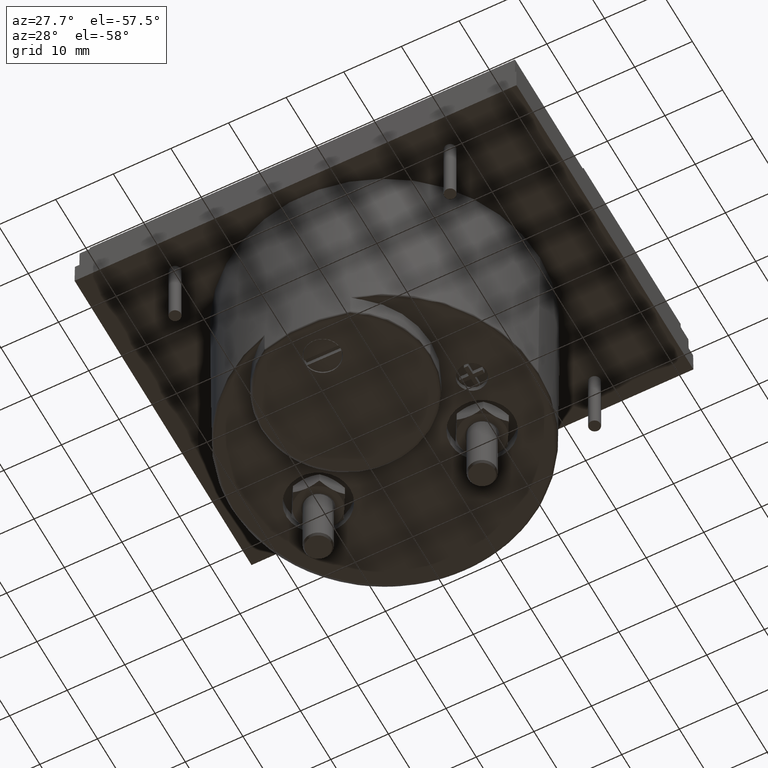
[diagram: clean part render]
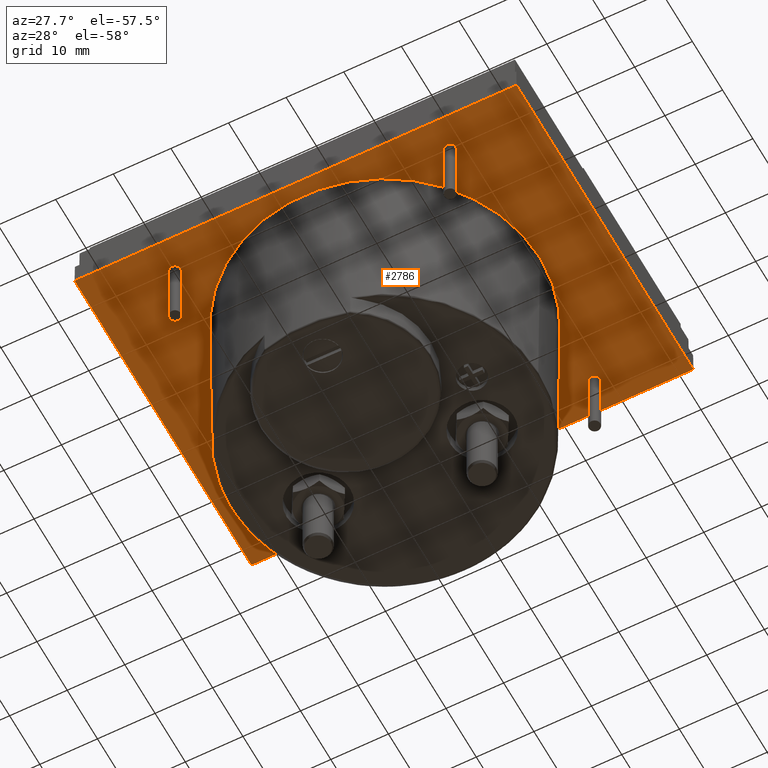
[diagram: same view with one face highlighted and labeled with its STEP entity id]
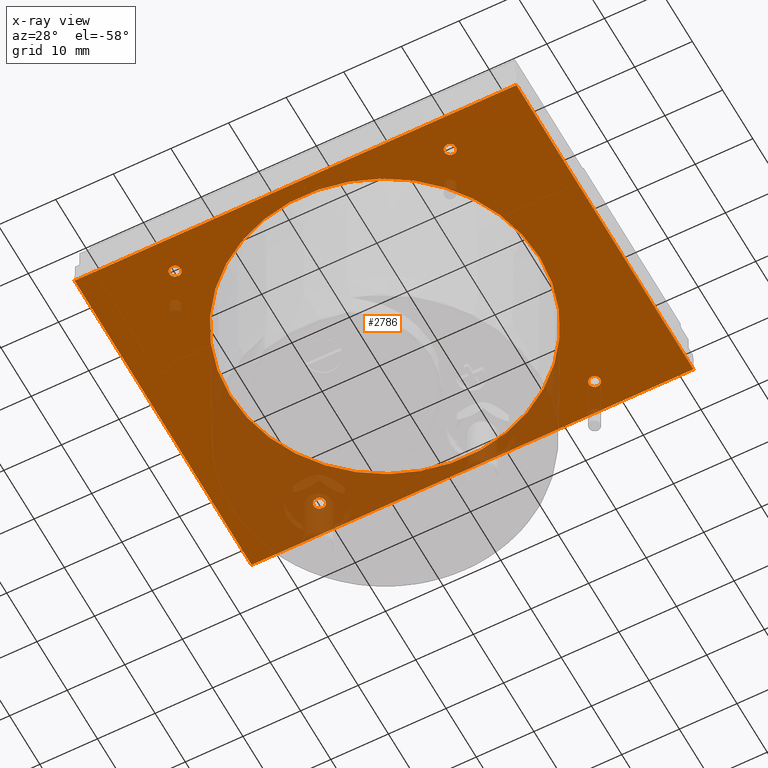
[diagram: x-ray of the same camera — body ghosted, the highlighted face saturated]
A machine part, auxiliary view. The second image highlights one B-rep face of the part: STEP entity #2786.
The next image is the same camera in x-ray: the body ghosted, the highlighted face saturated — about 24% of this face is hidden behind the body in this view.
In plain terms, the highlighted planar face has unit normal (0, 0, -1).
Its self-contained STEP definition (entity closure, byte-faithful):
#53 = AXIS2_PLACEMENT_3D ( 'NONE', #5462, #4563, #1286 ) ;
#57 = EDGE_CURVE ( 'NONE', #2270, #3653, #536, .T. ) ;
#108 = CARTESIAN_POINT ( 'NONE',  ( 1.456692913385826849, 1.956692913385826849, -0.2732283464566925280 ) ) ;
#130 = CARTESIAN_POINT ( 'NONE',  ( -0.9400000000000000577, 1.755905511811027830, -0.2732283464566929720 ) ) ;
#156 = CIRCLE ( 'NONE', #5082, 1.059999999999999831 ) ;
#235 = CARTESIAN_POINT ( 'NONE',  ( 1.060000000000000719, 0.8159055118110236648, -0.2732283464567021314 ) ) ;
#397 = DIRECTION ( 'NONE',  ( -1.000000000000000000, 0.000000000000000000, 0.000000000000000000 ) ) ;
#420 = LINE ( 'NONE', #1813, #1433 ) ;
#481 = CIRCLE ( 'NONE', #5802, 0.03937007874015751446 ) ;
#536 = CIRCLE ( 'NONE', #4500, 0.03937007874015751446 ) ;
#615 = CARTESIAN_POINT ( 'NONE',  ( -0.9793700787401575791, 1.755905511811027830, -0.2732283464566929720 ) ) ;
#646 = DIRECTION ( 'NONE',  ( -0.000000000000000000, -0.000000000000000000, 1.000000000000000000 ) ) ;
#679 = ORIENTED_EDGE ( 'NONE', *, *, #2956, .T. ) ;
#703 = DIRECTION ( 'NONE',  ( 1.000000000000000000, 0.000000000000000000, 0.000000000000000000 ) ) ;
#756 = ORIENTED_EDGE ( 'NONE', *, *, #5242, .T. ) ;
#760 = VECTOR ( 'NONE', #3717, 39.37007874015748143 ) ;
#786 = ORIENTED_EDGE ( 'NONE', *, *, #2750, .T. ) ;
#804 = FACE_OUTER_BOUND ( 'NONE', #3596, .T. ) ;
#810 = CARTESIAN_POINT ( 'NONE',  ( 0.9006299212598425363, 1.755905511811027830, -0.2732283464566929720 ) ) ;
#829 = ORIENTED_EDGE ( 'NONE', *, *, #3548, .T. ) ;
#854 = CIRCLE ( 'NONE', #1044, 0.03937007874015751446 ) ;
#894 = CARTESIAN_POINT ( 'NONE',  ( 1.456692913385826849, -0.2440944881889744178, -0.2732283464566925280 ) ) ;
#938 = VECTOR ( 'NONE', #1303, 39.37007874015748143 ) ;
#958 = DIRECTION ( 'NONE',  ( -1.000000000000000000, 0.000000000000000000, 0.000000000000000000 ) ) ;
#1008 = VERTEX_POINT ( 'NONE', #4465 ) ;
#1044 = AXIS2_PLACEMENT_3D ( 'NONE', #2370, #2435, #2831 ) ;
#1161 = CIRCLE ( 'NONE', #4545, 0.03937007874015751446 ) ;
#1223 = ORIENTED_EDGE ( 'NONE', *, *, #5530, .T. ) ;
#1229 = VERTEX_POINT ( 'NONE', #615 ) ;
#1242 = DIRECTION ( 'NONE',  ( -0.000000000000000000, -0.000000000000000000, 1.000000000000000000 ) ) ;
#1278 = CARTESIAN_POINT ( 'NONE',  ( -1.509842519685039575, -0.2440944881889744178, -0.2732283464566925280 ) ) ;
#1286 = DIRECTION ( 'NONE',  ( -1.000000000000000000, 0.000000000000000000, 0.000000000000000000 ) ) ;
#1301 = DIRECTION ( 'NONE',  ( -1.000000000000000000, 0.000000000000000000, 0.000000000000000000 ) ) ;
#1303 = DIRECTION ( 'NONE',  ( 0.000000000000000000, 1.000000000000000000, 0.000000000000000000 ) ) ;
#1338 = PLANE ( 'NONE',  #1802 ) ;
#1408 = CIRCLE ( 'NONE', #53, 0.03937007874015751446 ) ;
#1433 = VECTOR ( 'NONE', #5959, 39.37007874015748143 ) ;
#1546 = CARTESIAN_POINT ( 'NONE',  ( -0.9400000000000000577, -0.1240944881889748247, -0.2732283464566929720 ) ) ;
#1584 = EDGE_CURVE ( 'NONE', #5752, #1864, #2959, .T. ) ;
#1641 = EDGE_LOOP ( 'NONE', ( #756, #4959 ) ) ;
#1743 = CARTESIAN_POINT ( 'NONE',  ( 0.9793700787401575791, 1.755905511811027830, -0.2732283464566929720 ) ) ;
#1762 = DIRECTION ( 'NONE',  ( 0.000000000000000000, 0.000000000000000000, -1.000000000000000000 ) ) ;
#1775 = DIRECTION ( 'NONE',  ( 0.000000000000000000, -0.000000000000000000, -1.000000000000000000 ) ) ;
#1787 = VERTEX_POINT ( 'NONE', #5195 ) ;
#1788 = FACE_BOUND ( 'NONE', #5803, .T. ) ;
#1802 = AXIS2_PLACEMENT_3D ( 'NONE', #894, #1762, #3623 ) ;
#1813 = CARTESIAN_POINT ( 'NONE',  ( 1.456692913385826849, -0.3464566929133838791, -0.2732283464566925280 ) ) ;
#1854 = DIRECTION ( 'NONE',  ( -0.000000000000000000, -0.000000000000000000, 1.000000000000000000 ) ) ;
#1857 = VERTEX_POINT ( 'NONE', #1743 ) ;
#1859 = LINE ( 'NONE', #108, #760 ) ;
#1864 = VERTEX_POINT ( 'NONE', #235 ) ;
#2004 = CARTESIAN_POINT ( 'NONE',  ( 0.9400000000000000577, 1.755905511811027830, -0.2732283464566929720 ) ) ;
#2014 = EDGE_CURVE ( 'NONE', #5827, #1008, #1408, .T. ) ;
#2089 = ORIENTED_EDGE ( 'NONE', *, *, #4495, .T. ) ;
#2217 = FACE_BOUND ( 'NONE', #1641, .T. ) ;
#2257 = DIRECTION ( 'NONE',  ( 1.000000000000000000, 0.000000000000000000, 0.000000000000000000 ) ) ;
#2270 = VERTEX_POINT ( 'NONE', #2511 ) ;
#2309 = EDGE_CURVE ( 'NONE', #1864, #5752, #156, .T. ) ;
#2370 = CARTESIAN_POINT ( 'NONE',  ( -0.9400000000000000577, -0.1240944881889748247, -0.2732283464566929720 ) ) ;
#2401 = DIRECTION ( 'NONE',  ( -0.000000000000000000, -0.000000000000000000, 1.000000000000000000 ) ) ;
#2407 = CIRCLE ( 'NONE', #3003, 0.03937007874015751446 ) ;
#2435 = DIRECTION ( 'NONE',  ( -0.000000000000000000, -0.000000000000000000, 1.000000000000000000 ) ) ;
#2511 = CARTESIAN_POINT ( 'NONE',  ( -0.9006299212598425363, -0.1240944881889748247, -0.2732283464566929720 ) ) ;
#2613 = AXIS2_PLACEMENT_3D ( 'NONE', #130, #1854, #3258 ) ;
#2750 = EDGE_CURVE ( 'NONE', #4220, #3808, #3597, .T. ) ;
#2754 = CARTESIAN_POINT ( 'NONE',  ( -1.509842519685039575, -0.3464566929133838791, -0.2732283464566924169 ) ) ;
#2786 = ADVANCED_FACE ( 'NONE', ( #804, #4520, #2217, #4069, #1788, #5915 ), #1338, .T. ) ;
#2793 = CIRCLE ( 'NONE', #4343, 0.03937007874015751446 ) ;
#2831 = DIRECTION ( 'NONE',  ( -1.000000000000000000, 0.000000000000000000, 0.000000000000000000 ) ) ;
#2854 = CARTESIAN_POINT ( 'NONE',  ( 0.9793700787401575791, -0.1240944881889740337, -0.2732283464566929720 ) ) ;
#2956 = EDGE_CURVE ( 'NONE', #1787, #3833, #3611, .T. ) ;
#2959 = CIRCLE ( 'NONE', #4308, 1.059999999999999831 ) ;
#3003 = AXIS2_PLACEMENT_3D ( 'NONE', #3560, #1242, #397 ) ;
#3231 = EDGE_LOOP ( 'NONE', ( #4269, #3872 ) ) ;
#3258 = DIRECTION ( 'NONE',  ( -1.000000000000000000, 0.000000000000000000, 0.000000000000000000 ) ) ;
#3466 = VERTEX_POINT ( 'NONE', #3780 ) ;
#3548 = EDGE_CURVE ( 'NONE', #3653, #2270, #854, .T. ) ;
#3560 = CARTESIAN_POINT ( 'NONE',  ( 0.9400000000000000577, 1.755905511811027830, -0.2732283464566929720 ) ) ;
#3589 = EDGE_CURVE ( 'NONE', #3808, #1787, #1859, .T. ) ;
#3596 = EDGE_LOOP ( 'NONE', ( #5388, #679, #2089, #786 ) ) ;
#3597 = LINE ( 'NONE', #1278, #938 ) ;
#3611 = LINE ( 'NONE', #5440, #4219 ) ;
#3623 = DIRECTION ( 'NONE',  ( -1.000000000000000000, 0.000000000000000000, -0.000000000000000000 ) ) ;
#3649 = ORIENTED_EDGE ( 'NONE', *, *, #57, .T. ) ;
#3653 = VERTEX_POINT ( 'NONE', #4831 ) ;
#3711 = CARTESIAN_POINT ( 'NONE',  ( 1.509842519685039575, -0.3464566929133838791, -0.2732283464566922504 ) ) ;
#3717 = DIRECTION ( 'NONE',  ( 1.000000000000000000, -0.000000000000000000, 0.000000000000000000 ) ) ;
#3780 = CARTESIAN_POINT ( 'NONE',  ( -0.9006299212598425363, 1.755905511811027830, -0.2732283464566929720 ) ) ;
#3808 = VERTEX_POINT ( 'NONE', #4097 ) ;
#3833 = VERTEX_POINT ( 'NONE', #3711 ) ;
#3872 = ORIENTED_EDGE ( 'NONE', *, *, #1584, .F. ) ;
#4063 = CIRCLE ( 'NONE', #2613, 0.03937007874015751446 ) ;
#4069 = FACE_BOUND ( 'NONE', #4463, .T. ) ;
#4097 = CARTESIAN_POINT ( 'NONE',  ( -1.509842519685039575, 1.956692913385826849, -0.2732283464566928610 ) ) ;
#4219 = VECTOR ( 'NONE', #5025, 39.37007874015748143 ) ;
#4220 = VERTEX_POINT ( 'NONE', #2754 ) ;
#4269 = ORIENTED_EDGE ( 'NONE', *, *, #2309, .F. ) ;
#4308 = AXIS2_PLACEMENT_3D ( 'NONE', #5526, #1775, #2257 ) ;
#4343 = AXIS2_PLACEMENT_3D ( 'NONE', #2004, #2401, #958 ) ;
#4463 = EDGE_LOOP ( 'NONE', ( #5119, #5451 ) ) ;
#4465 = CARTESIAN_POINT ( 'NONE',  ( 0.9006299212598425363, -0.1240944881889740337, -0.2732283464566929720 ) ) ;
#4495 = EDGE_CURVE ( 'NONE', #3833, #4220, #420, .T. ) ;
#4500 = AXIS2_PLACEMENT_3D ( 'NONE', #1546, #646, #4909 ) ;
#4520 = FACE_BOUND ( 'NONE', #5066, .T. ) ;
#4545 = AXIS2_PLACEMENT_3D ( 'NONE', #5448, #4578, #1301 ) ;
#4547 = DIRECTION ( 'NONE',  ( -0.000000000000000000, -0.000000000000000000, 1.000000000000000000 ) ) ;
#4563 = DIRECTION ( 'NONE',  ( -0.000000000000000000, -0.000000000000000000, 1.000000000000000000 ) ) ;
#4578 = DIRECTION ( 'NONE',  ( -0.000000000000000000, -0.000000000000000000, 1.000000000000000000 ) ) ;
#4643 = CARTESIAN_POINT ( 'NONE',  ( -1.059999999999999165, 0.8159055118110237759, -0.2732283464567021314 ) ) ;
#4829 = VERTEX_POINT ( 'NONE', #810 ) ;
#4831 = CARTESIAN_POINT ( 'NONE',  ( -0.9793700787401575791, -0.1240944881889748247, -0.2732283464566929720 ) ) ;
#4909 = DIRECTION ( 'NONE',  ( -1.000000000000000000, 0.000000000000000000, 0.000000000000000000 ) ) ;
#4934 = EDGE_CURVE ( 'NONE', #4829, #1857, #2793, .T. ) ;
#4959 = ORIENTED_EDGE ( 'NONE', *, *, #2014, .T. ) ;
#5025 = DIRECTION ( 'NONE',  ( -0.000000000000000000, -1.000000000000000000, -0.000000000000000000 ) ) ;
#5030 = CARTESIAN_POINT ( 'NONE',  ( -0.9400000000000000577, 1.755905511811027830, -0.2732283464566929720 ) ) ;
#5066 = EDGE_LOOP ( 'NONE', ( #1223, #5224 ) ) ;
#5082 = AXIS2_PLACEMENT_3D ( 'NONE', #5655, #5783, #703 ) ;
#5119 = ORIENTED_EDGE ( 'NONE', *, *, #4934, .T. ) ;
#5195 = CARTESIAN_POINT ( 'NONE',  ( 1.509842519685039575, 1.956692913385826627, -0.2732283464566926390 ) ) ;
#5224 = ORIENTED_EDGE ( 'NONE', *, *, #5834, .T. ) ;
#5242 = EDGE_CURVE ( 'NONE', #1008, #5827, #1161, .T. ) ;
#5388 = ORIENTED_EDGE ( 'NONE', *, *, #3589, .T. ) ;
#5440 = CARTESIAN_POINT ( 'NONE',  ( 1.509842519685039575, -0.2440944881889744178, -0.2732283464566925280 ) ) ;
#5448 = CARTESIAN_POINT ( 'NONE',  ( 0.9400000000000000577, -0.1240944881889740337, -0.2732283464566929720 ) ) ;
#5451 = ORIENTED_EDGE ( 'NONE', *, *, #5565, .T. ) ;
#5462 = CARTESIAN_POINT ( 'NONE',  ( 0.9400000000000000577, -0.1240944881889740337, -0.2732283464566929720 ) ) ;
#5526 = CARTESIAN_POINT ( 'NONE',  ( 8.195543980992789655E-16, 0.8159055118110236648, -0.2732283464567021314 ) ) ;
#5530 = EDGE_CURVE ( 'NONE', #1229, #3466, #481, .T. ) ;
#5565 = EDGE_CURVE ( 'NONE', #1857, #4829, #2407, .T. ) ;
#5655 = CARTESIAN_POINT ( 'NONE',  ( 8.195543980992789655E-16, 0.8159055118110236648, -0.2732283464567021314 ) ) ;
#5752 = VERTEX_POINT ( 'NONE', #4643 ) ;
#5783 = DIRECTION ( 'NONE',  ( 0.000000000000000000, -0.000000000000000000, -1.000000000000000000 ) ) ;
#5802 = AXIS2_PLACEMENT_3D ( 'NONE', #5030, #4547, #5877 ) ;
#5803 = EDGE_LOOP ( 'NONE', ( #829, #3649 ) ) ;
#5827 = VERTEX_POINT ( 'NONE', #2854 ) ;
#5834 = EDGE_CURVE ( 'NONE', #3466, #1229, #4063, .T. ) ;
#5877 = DIRECTION ( 'NONE',  ( -1.000000000000000000, 0.000000000000000000, 0.000000000000000000 ) ) ;
#5915 = FACE_BOUND ( 'NONE', #3231, .T. ) ;
#5959 = DIRECTION ( 'NONE',  ( -1.000000000000000000, 0.000000000000000000, -0.000000000000000000 ) ) ;